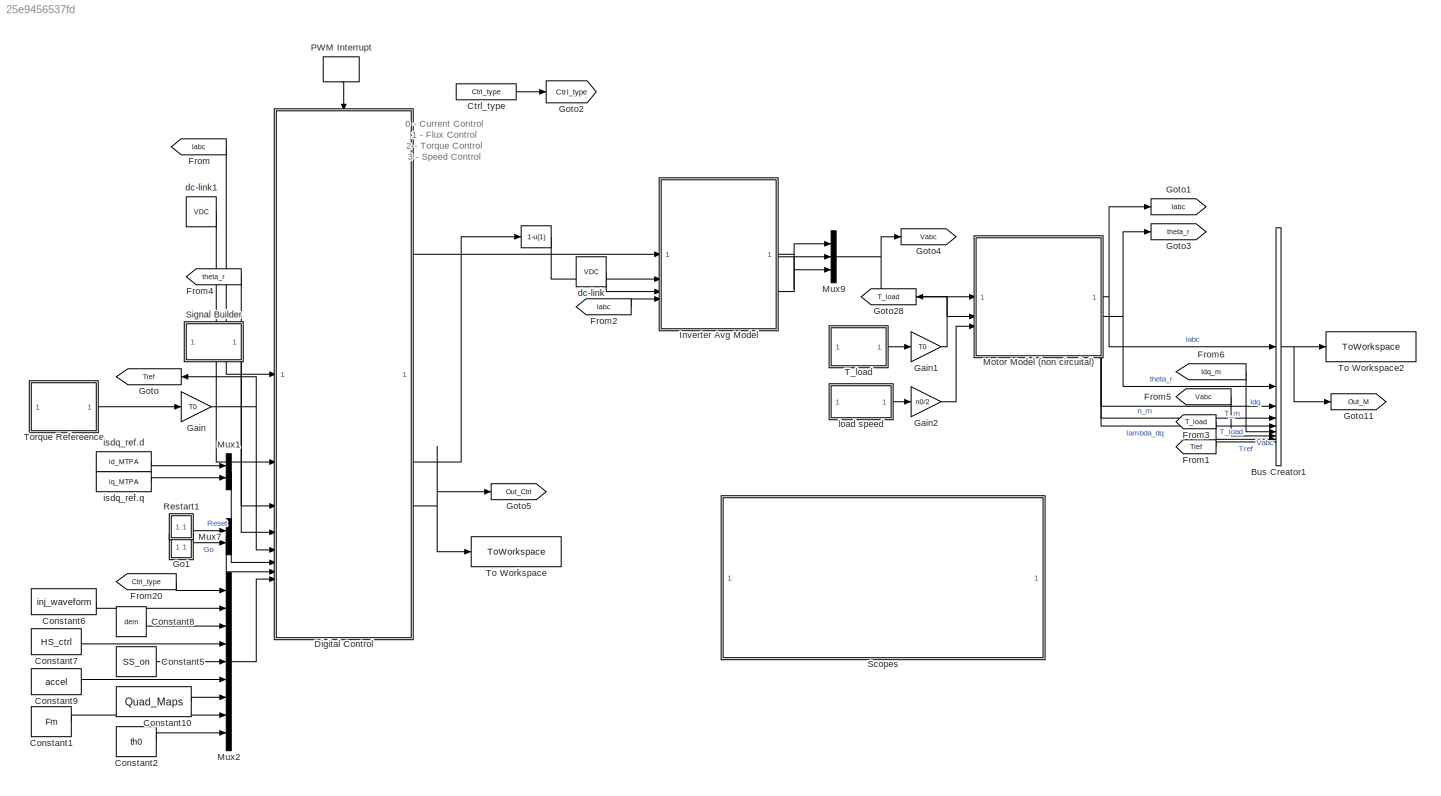
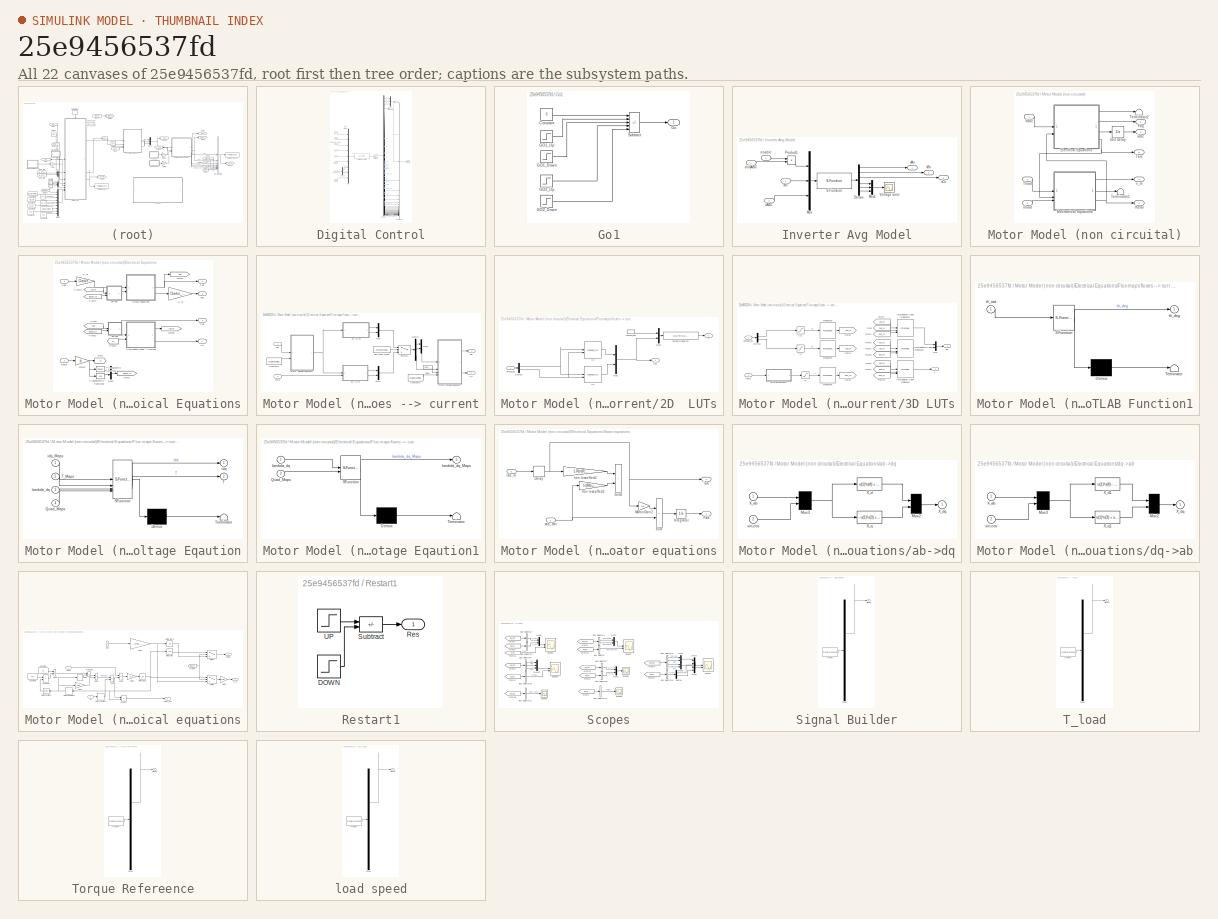
[diagram: thumbnail index - all 22 canvases of the model, root first then tree order]
MODEL slx_25e9456537fd
KIND model
CONFIG AbsTol = 1e-3
CONFIG EnableMultiTasking = on
CONFIG FixedStep = Tstep
CONFIG InitFcn = tic\ninit_sim\nmex Motor_ctrl.c User_functions\Src\*.c\n
CONFIG MaxStep = Tstep
CONFIG MinStep = auto
CONFIG RelTol = 1e-3
CONFIG SampleTimeConstraint = Unconstrained
CONFIG SolverName = ode45
CONFIG StartTime = 0.0
CONFIG StopFcn = elapsed_time=toc
CONFIG StopTime = 1
BLOCK [Fcn]  
  Expr = 1-u(1)
  NameLocation = top
BLOCK [BusCreator] Bus Creator1
  DisplayOption = bar
  InheritFromInputs = on
  Inputs = 9
BLOCK [Constant] Constant1
  Value = Fm
BLOCK [Constant] Constant10
  Value = Quad_Maps
BLOCK [Constant] Constant2
  Value = th0
BLOCK [Constant] Constant5
  Value = SS_on
BLOCK [Constant] Constant6
  Value = inj_waveform
BLOCK [Constant] Constant7
  Value = HS_ctrl
BLOCK [Constant] Constant8
  Value = dem
BLOCK [Constant] Constant9
  Value = accel
BLOCK [Constant] Ctrl_type
  Value = Ctrl_type
BLOCK [SubSystem] Digital Control
  TreatAsAtomicUnit = on
BLOCK [BusCreator] Digital Control/Bus Creator
  DisplayOption = bar
  InheritFromInputs = on
  Inputs = 31
BLOCK [Inport] Digital Control/Commands
  Port = 7
BLOCK [S-Function] Digital Control/Control S-Function
  EnableBusSupport = off
  FunctionName = Motor_ctrl
  SFcnIsStateOwnerBlock = off
  SFunctionDeploymentMode = off
BLOCK [Demux] Digital Control/Demux1
  Outputs = 2
BLOCK [Demux] Digital Control/Demux2
  Outputs = 34
BLOCK [Inport] Digital Control/Inputs
  Port = 8
BLOCK [Mux] Digital Control/Mux
  DisplayOption = bar
  Inputs = 9
BLOCK [Mux] Digital Control/Mux1
  DisplayOption = bar
  Inputs = 3
BLOCK [Outport] Digital Control/Outputs
  Port = 3
BLOCK [Inport] Digital Control/T*
  Port = 5
BLOCK [TriggerPort] Digital Control/Trigger
  VariantControl = (inherit)
BLOCK [UnitDelay] Digital Control/Unit Delay
  HasFrameUpgradeWarning = on
  NameLocation = top
  SampleTime = -1
BLOCK [Outport] Digital Control/duty_abc
BLOCK [Inport] Digital Control/iabcs
BLOCK [Inport] Digital Control/isdq_ref
  Port = 6
BLOCK [Inport] Digital Control/n*
  Port = 4
BLOCK [Outport] Digital Control/pwm_stop
  Port = 2
BLOCK [Inport] Digital Control/theta_mec_meas
  Port = 3
BLOCK [Inport] Digital Control/vdc
  Port = 2
BLOCK [From] From
  GotoTag = Iabc
BLOCK [From] From1
  GotoTag = Tref
BLOCK [From] From2
  GotoTag = Iabc
BLOCK [From] From20
  CloseFcn = tagdialog Close
  GotoTag = Ctrl_type
  TagVisibility = global
BLOCK [From] From3
  GotoTag = T_load
  TagVisibility = global
BLOCK [From] From4
  GotoTag = theta_r
BLOCK [From] From5
  GotoTag = Vabc
BLOCK [From] From6
  GotoTag = Idq_m
  TagVisibility = global
BLOCK [Gain] Gain
  Gain = T0
BLOCK [Gain] Gain1
  Gain = T0
BLOCK [Gain] Gain2
  Gain = n0/2
BLOCK [SubSystem] Go1
BLOCK [Constant] Go1/Constant
  Value = 0
BLOCK [Step] Go1/GO1_Down
  SampleTime = 0
  Time = 0.03+4*Ts
BLOCK [Step] Go1/GO1_Up
  SampleTime = 0
  Time = 0.03
BLOCK [Step] Go1/GO2_Down
  SampleTime = 0
  Time = 0.1+4*Ts
BLOCK [Step] Go1/GO2_Up
  SampleTime = 0
  Time = 0.1
BLOCK [Outport] Go1/Go
BLOCK [Sum] Go1/Subtract
  IconShape = rectangular
  Inputs = ++-+-
BLOCK [Goto] Goto
  GotoTag = Tref
  NameLocation = top
BLOCK [Goto] Goto1
  GotoTag = Iabc
BLOCK [Goto] Goto11
  GotoTag = Out_M
  TagVisibility = global
BLOCK [Goto] Goto2
  GotoTag = Ctrl_type
  TagVisibility = global
BLOCK [Goto] Goto28
  GotoTag = T_load
  NameLocation = top
  TagVisibility = global
BLOCK [Goto] Goto3
  GotoTag = theta_r
BLOCK [Goto] Goto4
  GotoTag = Vabc
BLOCK [Goto] Goto5
  GotoTag = Out_Ctrl
  TagVisibility = global
BLOCK [SubSystem] Inverter Avg Model
BLOCK [Demux] Inverter Avg Model/Demux
  DisplayOption = none
  Outputs = 6
BLOCK [Mux] Inverter Avg Model/Mux
  DisplayOption = bar
  Inputs = 3
BLOCK [Mux] Inverter Avg Model/Mux2
  DisplayOption = bar
  Inputs = 3
BLOCK [Product] Inverter Avg Model/Product1
  RndMeth = Zero
BLOCK [S-Function] Inverter Avg Model/S-Function
  EnableBusSupport = off
  FunctionName = inverter
  Parameters = fsw,dead_time,enable_dt,enable_vdrop, TR_par(1), TR_par(2), TR_par(3), TR_par(4), TR_par(5), D_par(1), D_par(2), D_par(3), D_par(4), D_par(5), TR_mdl, D_mdl
  SFcnIsStateOwnerBlock = off
  SFunctionDeploymentMode = off
BLOCK [Scope] Inverter Avg Model/Voltage Error
  Floating = off
  NumInputPorts = 1
  ScopeSpecificationString = Simulink.scopes.TimeScopeBlockCfg('CurrentConfiguration', extmgr.ConfigurationSet(extmgr.Configuration('Core','General UI',true),extmgr.Configuration('Core','Source UI',true),extmgr.Configuration('Sources','WiredSimulink',true,'DataLoggingVariableName','ScopeData1'),extmgr.Configuration('Visuals','Time Domain',true,'SerializedDisplays',{struct('MinYLimReal','-0.00089','MaxYLimReal','0.00088','YLab...<+1386ch>
BLOCK [Inport] Inverter Avg Model/dutyABC
BLOCK [Inport] Inverter Avg Model/enable
  NameLocation = top
  Port = 2
BLOCK [Inport] Inverter Avg Model/iABC
  Port = 4
BLOCK [Outport] Inverter Avg Model/vAn
  NameLocation = top
  VectorParamsAs1DForOutWhenUnconnected = off
BLOCK [Outport] Inverter Avg Model/vBn
  NameLocation = top
  Port = 2
  VectorParamsAs1DForOutWhenUnconnected = off
BLOCK [Outport] Inverter Avg Model/vCn
  Port = 3
  VectorParamsAs1DForOutWhenUnconnected = off
BLOCK [Inport] Inverter Avg Model/vdc
  Port = 3
BLOCK [SubSystem] Motor Model (non circuital)
BLOCK [SubSystem] Motor Model (non circuital)/Electrical Equations
  NameLocation = top
BLOCK [Gain] Motor Model (non circuital)/Electrical Equations/2-->3
  Gain = Clarke_inv
  Multiplication = Matrix(K*u)
  NameLocation = top
  OutDataTypeStr = Inherit: Same as input
  ParamDataTypeStr = Inherit: Same as input
  SaturateOnIntegerOverflow = on
BLOCK [Gain] Motor Model (non circuital)/Electrical Equations/3-->2
  Gain = Clarke
  Multiplication = Matrix(K*u)
  NameLocation = top
  OutDataTypeStr = Inherit: Same as input
  ParamDataTypeStr = Inherit: Same as input
  SaturateOnIntegerOverflow = on
BLOCK [Outport] Motor Model (non circuital)/Electrical Equations/Fab
BLOCK [Outport] Motor Model (non circuital)/Electrical Equations/Fdq
  Port = 2
BLOCK [SubSystem] Motor Model (non circuital)/Electrical Equations/Flux maps fluxes --> current
BLOCK [SubSystem] Motor Model (non circuital)/Electrical Equations/Flux maps fluxes --> current/2D  LUTs
BLOCK [Demux] Motor Model (non circuital)/Electrical Equations/Flux maps fluxes --> current/2D  LUTs/Demux
  Outputs = 2
BLOCK [Mux] Motor Model (non circuital)/Electrical Equations/Flux maps fluxes --> current/2D  LUTs/Mux1
  DisplayOption = bar
  Inputs = 2
BLOCK [Mux] Motor Model (non circuital)/Electrical Equations/Flux maps fluxes --> current/2D  LUTs/Mux6
  DisplayOption = bar
  Inputs = 2
BLOCK [Outport] Motor Model (non circuital)/Electrical Equations/Flux maps fluxes --> current/2D  LUTs/T
  Port = 2
BLOCK [Fcn] Motor Model (non circuital)/Electrical Equations/Flux maps fluxes --> current/2D  LUTs/Torque Equation
  Expr = (3/2)*p*(u[1]*u[4]-u[2]*u[3])
BLOCK [Lookup_n-D] Motor Model (non circuital)/Electrical Equations/Flux maps fluxes --> current/2D  LUTs/iD
  BreakpointsForDimension1 = Fd(1,:)
  BreakpointsForDimension1FirstPoint = 0
  BreakpointsForDimension1Spacing = 0.17
  BreakpointsForDimension2 = Fq(:,1)
  BreakpointsForDimension2FirstPoint = 0
  BreakpointsForDimension2Spacing = 0.17
  InputPortMap = u0,u1
  InternalRulePriority = Speed
  RndMeth = Simplest
  Table = Id'
BLOCK [Lookup_n-D] Motor Model (non circuital)/Electrical Equations/Flux maps fluxes --> current/2D  LUTs/iQ
  BreakpointsForDimension1 = Fd(1,:)
  BreakpointsForDimension1FirstPoint = 0
  BreakpointsForDimension1Spacing = 0.17
  BreakpointsForDimension2 = Fq(:,1)
  BreakpointsForDimension2FirstPoint = 0
  BreakpointsForDimension2Spacing = 0.17
  InputPortMap = u0,u1
  InternalRulePriority = Speed
  RndMeth = Simplest
  Table = Iq'
BLOCK [Outport] Motor Model (non circuital)/Electrical Equations/Flux maps fluxes --> current/2D  LUTs/idq
BLOCK [Inport] Motor Model (non circuital)/Electrical Equations/Flux maps fluxes --> current/2D  LUTs/lamda_dq
BLOCK [InportShadow] Motor Model (non circuital)/Electrical Equations/Flux maps fluxes --> current/2D  LUTs/lamda_dq1
BLOCK [SubSystem] Motor Model (non circuital)/Electrical Equations/Flux maps fluxes --> current/3D LUTs
BLOCK [Demux] Motor Model (non circuital)/Electrical Equations/Flux maps fluxes --> current/3D LUTs/Demux
  Outputs = 2
BLOCK [From] Motor Model (non circuital)/Electrical Equations/Flux maps fluxes --> current/3D LUTs/From
  GotoTag = bus_d
BLOCK [From] Motor Model (non circuital)/Electrical Equations/Flux maps fluxes --> current/3D LUTs/From1
  GotoTag = bus_d
BLOCK [From] Motor Model (non circuital)/Electrical Equations/Flux maps fluxes --> current/3D LUTs/From10
  GotoTag = bus_th
BLOCK [From] Motor Model (non circuital)/Electrical Equations/Flux maps fluxes --> current/3D LUTs/From2
  GotoTag = bus_d
BLOCK [From] Motor Model (non circuital)/Electrical Equations/Flux maps fluxes --> current/3D LUTs/From4
  GotoTag = bus_q
BLOCK [From] Motor Model (non circuital)/Electrical Equations/Flux maps fluxes --> current/3D LUTs/From5
  GotoTag = bus_q
BLOCK [From] Motor Model (non circuital)/Electrical Equations/Flux maps fluxes --> current/3D LUTs/From6
  GotoTag = bus_q
BLOCK [From] Motor Model (non circuital)/Electrical Equations/Flux maps fluxes --> current/3D LUTs/From8
  GotoTag = bus_th
BLOCK [From] Motor Model (non circuital)/Electrical Equations/Flux maps fluxes --> current/3D LUTs/From9
  GotoTag = bus_th
BLOCK [Goto] Motor Model (non circuital)/Electrical Equations/Flux maps fluxes --> current/3D LUTs/Goto1
  GotoTag = bus_q
BLOCK [Goto] Motor Model (non circuital)/Electrical Equations/Flux maps fluxes --> current/3D LUTs/Goto2
  GotoTag = bus_th
BLOCK [Goto] Motor Model (non circuital)/Electrical Equations/Flux maps fluxes --> current/3D LUTs/Goto5
  GotoTag = bus_d
BLOCK [Interpolation_n-D] Motor Model (non circuital)/Electrical Equations/Flux maps fluxes --> current/3D LUTs/Interpolation Using Prelookup
  InputPortMap = u0,u1,u2
  IntermediateResultsDataTypeStr = Inherit: Inherit via internal rule
  InternalRulePriority = Speed
  LookupTableObject = T_th
  NumberOfTableDimensions = 3
  RequireIndexFractionAsBus = on
  Table = T_dqt
BLOCK [Interpolation_n-D] Motor Model (non circuital)/Electrical Equations/Flux maps fluxes --> current/3D LUTs/Interpolation Using Prelookup1
  InputPortMap = u0,u1,u2
  IntermediateResultsDataTypeStr = Inherit: Inherit via internal rule
  InternalRulePriority = Speed
  NumberOfTableDimensions = 3
  RequireIndexFractionAsBus = on
  Table = Id_dqt
BLOCK [Interpolation_n-D] Motor Model (non circuital)/Electrical Equations/Flux maps fluxes --> current/3D LUTs/Interpolation Using Prelookup2
  InputPortMap = u0,u1,u2
  IntermediateResultsDataTypeStr = Inherit: Inherit via internal rule
  InternalRulePriority = Speed
  NumberOfTableDimensions = 3
  RequireIndexFractionAsBus = on
  Table = Iq_dqt
BLOCK [SubSystem] Motor Model (non circuital)/Electrical Equations/Flux maps fluxes --> current/3D LUTs/MATLAB Function1
  ErrorFcn = Stateflow.Translate.translate
  PermitHierarchicalResolution = ExplicitOnly
  SFBlockType = MATLAB Function
  TreatAsAtomicUnit = on
BLOCK [Demux] Motor Model (non circuital)/Electrical Equations/Flux maps fluxes --> current/3D LUTs/MATLAB Function1/ Demux 
  Outputs = 1
BLOCK [S-Function] Motor Model (non circuital)/Electrical Equations/Flux maps fluxes --> current/3D LUTs/MATLAB Function1/ SFunction 
  EnableBusSupport = off
  FunctionName = sf_sfun
  PortCounts = [1 2]
  SFcnIsStateOwnerBlock = off
  SFunctionDeploymentMode = off
  Tag = Stateflow S-Function 5
BLOCK [Terminator] Motor Model (non circuital)/Electrical Equations/Flux maps fluxes --> current/3D LUTs/MATLAB Function1/ Terminator 
BLOCK [Outport] Motor Model (non circuital)/Electrical Equations/Flux maps fluxes --> current/3D LUTs/MATLAB Function1/th_deg
BLOCK [Inport] Motor Model (non circuital)/Electrical Equations/Flux maps fluxes --> current/3D LUTs/MATLAB Function1/th_rad
BLOCK [Mux] Motor Model (non circuital)/Electrical Equations/Flux maps fluxes --> current/3D LUTs/Mux
  DisplayOption = bar
  Inputs = 2
BLOCK [PreLookup] Motor Model (non circuital)/Electrical Equations/Flux maps fluxes --> current/3D LUTs/Prelookup3
  BreakpointsData = Fd_v
  ExtrapMethod = Linear
  InputPortMap = u0
  OutputSelection = Index and fraction as bus
BLOCK [PreLookup] Motor Model (non circuital)/Electrical Equations/Flux maps fluxes --> current/3D LUTs/Prelookup4
  BreakpointsData = Fq_v
  ExtrapMethod = Linear
  InputPortMap = u0
  OutputSelection = Index and fraction as bus
BLOCK [PreLookup] Motor Model (non circuital)/Electrical Equations/Flux maps fluxes --> current/3D LUTs/Prelookup5
  BreakpointsData = th_v
  ExtrapMethod = Linear
  InputPortMap = u0
  OutputSelection = Index and fraction as bus
BLOCK [Outport] Motor Model (non circuital)/Electrical Equations/Flux maps fluxes --> current/3D LUTs/T
  Port = 2
BLOCK [Saturate] Motor Model (non circuital)/Electrical Equations/Flux maps fluxes --> current/3D LUTs/f_d
  LowerLimit = Fd_min
  UpperLimit = Fd_max
BLOCK [Saturate] Motor Model (non circuital)/Electrical Equations/Flux maps fluxes --> current/3D LUTs/f_q
  LowerLimit = Fq_min
  UpperLimit = Fq_max
BLOCK [Outport] Motor Model (non circuital)/Electrical Equations/Flux maps fluxes --> current/3D LUTs/idq
BLOCK [Inport] Motor Model (non circuital)/Electrical Equations/Flux maps fluxes --> current/3D LUTs/lambda_dq
BLOCK [Saturate] Motor Model (non circuital)/Electrical Equations/Flux maps fluxes --> current/3D LUTs/th
  LowerLimit = th_min
  UpperLimit = th_max
  ZeroCross = off
BLOCK [Inport] Motor Model (non circuital)/Electrical Equations/Flux maps fluxes --> current/3D LUTs/theta
  Port = 2
BLOCK [Constant] Motor Model (non circuital)/Electrical Equations/Flux maps fluxes --> current/Constant1
  Value = Quad_Maps
BLOCK [Constant] Motor Model (non circuital)/Electrical Equations/Flux maps fluxes --> current/Constant2
  Value = Quad_Maps
BLOCK [Demux] Motor Model (non circuital)/Electrical Equations/Flux maps fluxes --> current/Demux
  Outputs = 3
BLOCK [Inport] Motor Model (non circuital)/Electrical Equations/Flux maps fluxes --> current/Fdq
BLOCK [InportShadow] Motor Model (non circuital)/Electrical Equations/Flux maps fluxes --> current/Fdq1
BLOCK [Constant] Motor Model (non circuital)/Electrical Equations/Flux maps fluxes --> current/Flux Maps Model
  Value = FMapsModel
BLOCK [Mux] Motor Model (non circuital)/Electrical Equations/Flux maps fluxes --> current/Mux
  DisplayOption = bar
  Inputs = 2
BLOCK [Mux] Motor Model (non circuital)/Electrical Equations/Flux maps fluxes --> current/Mux1
  DisplayOption = bar
  Inputs = 2
BLOCK [Mux] Motor Model (non circuital)/Electrical Equations/Flux maps fluxes --> current/Mux2
  DisplayOption = bar
  Inputs = 2
BLOCK [SubSystem] Motor Model (non circuital)/Electrical Equations/Flux maps fluxes --> current/Stator Voltage Eqaution
  ErrorFcn = Stateflow.Translate.translate
  PermitHierarchicalResolution = ExplicitOnly
  SFBlockType = MATLAB Function
  TreatAsAtomicUnit = on
BLOCK [Demux] Motor Model (non circuital)/Electrical Equations/Flux maps fluxes --> current/Stator Voltage Eqaution/ Demux 
  Outputs = 1
BLOCK [S-Function] Motor Model (non circuital)/Electrical Equations/Flux maps fluxes --> current/Stator Voltage Eqaution/ SFunction 
  EnableBusSupport = off
  FunctionName = sf_sfun
  PortCounts = [4 3]
  SFcnIsStateOwnerBlock = off
  SFunctionDeploymentMode = off
  Tag = Stateflow S-Function 3
BLOCK [Terminator] Motor Model (non circuital)/Electrical Equations/Flux maps fluxes --> current/Stator Voltage Eqaution/ Terminator 
BLOCK [Inport] Motor Model (non circuital)/Electrical Equations/Flux maps fluxes --> current/Stator Voltage Eqaution/Quad_Maps
  Port = 4
BLOCK [Outport] Motor Model (non circuital)/Electrical Equations/Flux maps fluxes --> current/Stator Voltage Eqaution/T
  Port = 2
BLOCK [Inport] Motor Model (non circuital)/Electrical Equations/Flux maps fluxes --> current/Stator Voltage Eqaution/T_Maps
  Port = 2
BLOCK [Outport] Motor Model (non circuital)/Electrical Equations/Flux maps fluxes --> current/Stator Voltage Eqaution/idq
BLOCK [Inport] Motor Model (non circuital)/Electrical Equations/Flux maps fluxes --> current/Stator Voltage Eqaution/idq_Maps
BLOCK [Inport] Motor Model (non circuital)/Electrical Equations/Flux maps fluxes --> current/Stator Voltage Eqaution/lambda_dq
  Port = 3
BLOCK [SubSystem] Motor Model (non circuital)/Electrical Equations/Flux maps fluxes --> current/Stator Voltage Eqaution1
  ErrorFcn = Stateflow.Translate.translate
  PermitHierarchicalResolution = ExplicitOnly
  SFBlockType = MATLAB Function
  TreatAsAtomicUnit = on
BLOCK [Demux] Motor Model (non circuital)/Electrical Equations/Flux maps fluxes --> current/Stator Voltage Eqaution1/ Demux 
  Outputs = 1
BLOCK [S-Function] Motor Model (non circuital)/Electrical Equations/Flux maps fluxes --> current/Stator Voltage Eqaution1/ SFunction 
  EnableBusSupport = off
  FunctionName = sf_sfun
  PortCounts = [2 2]
  SFcnIsStateOwnerBlock = off
  SFunctionDeploymentMode = off
  Tag = Stateflow S-Function 4
BLOCK [Terminator] Motor Model (non circuital)/Electrical Equations/Flux maps fluxes --> current/Stator Voltage Eqaution1/ Terminator 
BLOCK [Inport] Motor Model (non circuital)/Electrical Equations/Flux maps fluxes --> current/Stator Voltage Eqaution1/Quad_Maps
  Port = 2
BLOCK [Inport] Motor Model (non circuital)/Electrical Equations/Flux maps fluxes --> current/Stator Voltage Eqaution1/lambda_dq
BLOCK [Outport] Motor Model (non circuital)/Electrical Equations/Flux maps fluxes --> current/Stator Voltage Eqaution1/lambda_dq_Maps
BLOCK [Switch] Motor Model (non circuital)/Electrical Equations/Flux maps fluxes --> current/Switch1
  Criteria = u2 > Threshold
  InputSameDT = off
  SaturateOnIntegerOverflow = off
BLOCK [Outport] Motor Model (non circuital)/Electrical Equations/Flux maps fluxes --> current/T_e
  InitialOutput = 0
  Port = 2
BLOCK [Outport] Motor Model (non circuital)/Electrical Equations/Flux maps fluxes --> current/idq
  InitialOutput = 0
BLOCK [Inport] Motor Model (non circuital)/Electrical Equations/Flux maps fluxes --> current/theta
  Port = 2
BLOCK [From] Motor Model (non circuital)/Electrical Equations/From
  GotoTag = Fab
BLOCK [From] Motor Model (non circuital)/Electrical Equations/From1
  GotoTag = th
BLOCK [From] Motor Model (non circuital)/Electrical Equations/From2
  GotoTag = SinCos_th
BLOCK [From] Motor Model (non circuital)/Electrical Equations/From3
  GotoTag = SinCos_th
BLOCK [From] Motor Model (non circuital)/Electrical Equations/From4
  GotoTag = Idq_m
  TagVisibility = global
BLOCK [Gain] Motor Model (non circuital)/Electrical Equations/Gain2
  Gain = p
  OutDataTypeStr = Inherit: Same as input
  ParamDataTypeStr = Inherit: Same as input
  SaturateOnIntegerOverflow = on
BLOCK [Goto] Motor Model (non circuital)/Electrical Equations/Goto
  GotoTag = th
BLOCK [Goto] Motor Model (non circuital)/Electrical Equations/Goto1
  GotoTag = SinCos_th
BLOCK [Goto] Motor Model (non circuital)/Electrical Equations/Goto2
  GotoTag = Fab
BLOCK [Goto] Motor Model (non circuital)/Electrical Equations/Goto3
  GotoTag = Idq_m
  TagVisibility = global
BLOCK [Mux] Motor Model (non circuital)/Electrical Equations/Mux2
  DisplayOption = bar
  Inputs = 2
  NameLocation = top
BLOCK [SubSystem] Motor Model (non circuital)/Electrical Equations/Stator equations
BLOCK [Delay] Motor Model (non circuital)/Electrical Equations/Stator equations/Delay
  DelayLength = 1
  InputPortMap = u0
BLOCK [Outport] Motor Model (non circuital)/Electrical Equations/Stator equations/Fab
  VectorParamsAs1DForOutWhenUnconnected = off
BLOCK [Integrator] Motor Model (non circuital)/Electrical Equations/Stator equations/Integrator
  InitialCondition = [F0_alpha,F0_beta]
BLOCK [Gain] Motor Model (non circuital)/Electrical Equations/Stator equations/Iron loss effect1
  Gain = 1-Rs/(Rs+Rfe)
  NameLocation = top
  OutDataTypeStr = Inherit: Same as input
  ParamDataTypeStr = Inherit: Same as input
  SaturateOnIntegerOverflow = on
BLOCK [Gain] Motor Model (non circuital)/Electrical Equations/Stator equations/Iron loss effect2
  Gain = 1/(Rfe+Rs)
  NameLocation = top
  OutDataTypeStr = Inherit: Same as input
  ParamDataTypeStr = Inherit: Same as input
  SaturateOnIntegerOverflow = on
BLOCK [Gain] Motor Model (non circuital)/Electrical Equations/Stator equations/Matrix Gain2
  Gain = Rs
  OutDataTypeStr = Inherit: Same as input
  ParamDataTypeStr = Inherit: Same as input
  SaturateOnIntegerOverflow = on
BLOCK [Sum] Motor Model (non circuital)/Electrical Equations/Stator equations/Sum
  IconShape = rectangular
  Inputs = -+
  OutDataTypeStr = Inherit: Same as first input
  SaturateOnIntegerOverflow = on
BLOCK [Sum] Motor Model (non circuital)/Electrical Equations/Stator equations/Sum2
  IconShape = rectangular
  OutDataTypeStr = Inherit: Same as first input
  SaturateOnIntegerOverflow = on
BLOCK [Outport] Motor Model (non circuital)/Electrical Equations/Stator equations/iab
  Port = 2
  VectorParamsAs1DForOutWhenUnconnected = off
BLOCK [Inport] Motor Model (non circuital)/Electrical Equations/Stator equations/iab_m
  Port = 2
BLOCK [Inport] Motor Model (non circuital)/Electrical Equations/Stator equations/vab_mot
BLOCK [Outport] Motor Model (non circuital)/Electrical Equations/Te
  Port = 4
BLOCK [Trigonometry] Motor Model (non circuital)/Electrical Equations/Trigonometric Function2
BLOCK [Trigonometry] Motor Model (non circuital)/Electrical Equations/Trigonometric Function3
  NameLocation = top
  Operator = cos
BLOCK [Inport] Motor Model (non circuital)/Electrical Equations/Vabc
BLOCK [SubSystem] Motor Model (non circuital)/Electrical Equations/ab->dq
  NameLocation = top
BLOCK [Mux] Motor Model (non circuital)/Electrical Equations/ab->dq/Mux2
  Inputs = 2
BLOCK [Mux] Motor Model (non circuital)/Electrical Equations/ab->dq/Mux3
  Inputs = 2
BLOCK [Inport] Motor Model (non circuital)/Electrical Equations/ab->dq/X_ab
BLOCK [Fcn] Motor Model (non circuital)/Electrical Equations/ab->dq/X_d
  Expr = u(1)*u(4) + u(2)*u(3)
BLOCK [Outport] Motor Model (non circuital)/Electrical Equations/ab->dq/X_dq
  InitialOutput = 0
BLOCK [Fcn] Motor Model (non circuital)/Electrical Equations/ab->dq/X_q
  Expr = - u(1)*u(3) + u(2)*u(4)
BLOCK [Inport] Motor Model (non circuital)/Electrical Equations/ab->dq/sin,cos
  Port = 2
BLOCK [SubSystem] Motor Model (non circuital)/Electrical Equations/dq->ab
  NameLocation = top
BLOCK [Mux] Motor Model (non circuital)/Electrical Equations/dq->ab/Mux2
  Inputs = 2
BLOCK [Mux] Motor Model (non circuital)/Electrical Equations/dq->ab/Mux3
  Inputs = 2
BLOCK [Inport] Motor Model (non circuital)/Electrical Equations/dq->ab/X_ab
BLOCK [Fcn] Motor Model (non circuital)/Electrical Equations/dq->ab/X_d1
  Expr = u(1)*u(4) - u(2)*u(3)
BLOCK [Outport] Motor Model (non circuital)/Electrical Equations/dq->ab/X_dq
  InitialOutput = 0
BLOCK [Fcn] Motor Model (non circuital)/Electrical Equations/dq->ab/X_q1
  Expr = u(1)*u(3) + u(2)*u(4)
BLOCK [Inport] Motor Model (non circuital)/Electrical Equations/dq->ab/sin,cos
  Port = 2
BLOCK [Outport] Motor Model (non circuital)/Electrical Equations/iabc
  Port = 3
BLOCK [Inport] Motor Model (non circuital)/Electrical Equations/thetar
  Port = 2
BLOCK [Outport] Motor Model (non circuital)/Fdq
  Port = 5
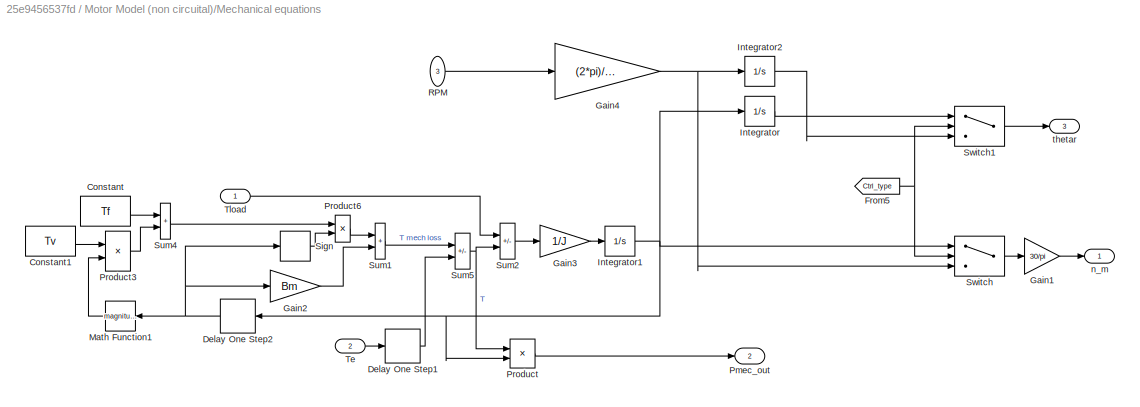
BLOCK [SubSystem] Motor Model (non circuital)/Mechanical equations
  NameLocation = top
BLOCK [Constant] Motor Model (non circuital)/Mechanical equations/Constant
  Value = Tf
BLOCK [Constant] Motor Model (non circuital)/Mechanical equations/Constant1
  Value = Tv
BLOCK [Delay] Motor Model (non circuital)/Mechanical equations/Delay One Step1
  DelayLength = 1
  InputPortMap = u0
BLOCK [Delay] Motor Model (non circuital)/Mechanical equations/Delay One Step2
  DelayLength = 1
  InputPortMap = u0
BLOCK [From] Motor Model (non circuital)/Mechanical equations/From5
  GotoTag = Ctrl_type
  TagVisibility = global
BLOCK [Gain] Motor Model (non circuital)/Mechanical equations/Gain1
  Gain = 30/pi
BLOCK [Gain] Motor Model (non circuital)/Mechanical equations/Gain2
  Gain = Bm
  OutDataTypeStr = Inherit: Same as input
  ParamDataTypeStr = Inherit: Same as input
  SaturateOnIntegerOverflow = on
BLOCK [Gain] Motor Model (non circuital)/Mechanical equations/Gain3
  Gain = 1/J
  OutDataTypeStr = Inherit: Same as input
  ParamDataTypeStr = Inherit: Same as input
  SaturateOnIntegerOverflow = on
BLOCK [Gain] Motor Model (non circuital)/Mechanical equations/Gain4
  Gain = (2*pi)/60
BLOCK [Integrator] Motor Model (non circuital)/Mechanical equations/Integrator
  InitialCondition = th0
  WrapState = on
  WrappedStateLowerValue = 0
  WrappedStateUpperValue = 2*pi
BLOCK [Integrator] Motor Model (non circuital)/Mechanical equations/Integrator1
BLOCK [Integrator] Motor Model (non circuital)/Mechanical equations/Integrator2
  InitialCondition = th0
  WrapState = on
  WrappedStateLowerValue = 0
  WrappedStateUpperValue = 2*pi
BLOCK [Math] Motor Model (non circuital)/Mechanical equations/Math Function1
  Operator = magnitude^2
  SignedPower = on
BLOCK [Outport] Motor Model (non circuital)/Mechanical equations/Pmec_out
  Port = 2
  VectorParamsAs1DForOutWhenUnconnected = off
BLOCK [Product] Motor Model (non circuital)/Mechanical equations/Product
  OutDataTypeStr = Inherit: Same as first input
  SaturateOnIntegerOverflow = on
BLOCK [Product] Motor Model (non circuital)/Mechanical equations/Product3
  OutDataTypeStr = Inherit: Same as first input
  SaturateOnIntegerOverflow = on
BLOCK [Product] Motor Model (non circuital)/Mechanical equations/Product6
  OutDataTypeStr = Inherit: Same as first input
  SaturateOnIntegerOverflow = on
BLOCK [Inport] Motor Model (non circuital)/Mechanical equations/RPM
  Port = 3
BLOCK [Signum] Motor Model (non circuital)/Mechanical equations/Sign
  ZeroCross = off
BLOCK [Sum] Motor Model (non circuital)/Mechanical equations/Sum1
  IconShape = rectangular
  OutDataTypeStr = Inherit: Same as first input
  SaturateOnIntegerOverflow = on
BLOCK [Sum] Motor Model (non circuital)/Mechanical equations/Sum2
  IconShape = rectangular
  Inputs = -+
  OutDataTypeStr = Inherit: Same as first input
  SaturateOnIntegerOverflow = on
BLOCK [Sum] Motor Model (non circuital)/Mechanical equations/Sum4
  IconShape = rectangular
  OutDataTypeStr = Inherit: Same as first input
  SaturateOnIntegerOverflow = on
BLOCK [Sum] Motor Model (non circuital)/Mechanical equations/Sum5
  IconShape = rectangular
  Inputs = -+
  OutDataTypeStr = Inherit: Same as first input
  SaturateOnIntegerOverflow = on
BLOCK [Switch] Motor Model (non circuital)/Mechanical equations/Switch
  Criteria = u2 > Threshold
  InputSameDT = off
  SaturateOnIntegerOverflow = off
  Threshold = 2.5
BLOCK [Switch] Motor Model (non circuital)/Mechanical equations/Switch1
  Criteria = u2 > Threshold
  InputSameDT = off
  SaturateOnIntegerOverflow = off
  Threshold = 2.5
BLOCK [Inport] Motor Model (non circuital)/Mechanical equations/Te
  Port = 2
BLOCK [Inport] Motor Model (non circuital)/Mechanical equations/Tload
  NameLocation = top
BLOCK [Outport] Motor Model (non circuital)/Mechanical equations/n_m
BLOCK [Outport] Motor Model (non circuital)/Mechanical equations/thetar
  Port = 3
BLOCK [Outport] Motor Model (non circuital)/Tem
  Port = 3
BLOCK [Terminator] Motor Model (non circuital)/Terminator1
BLOCK [Terminator] Motor Model (non circuital)/Terminator2
BLOCK [Inport] Motor Model (non circuital)/Tload
  Port = 2
BLOCK [UnitDelay] Motor Model (non circuital)/Unit Delay
  HasFrameUpgradeWarning = on
  NameLocation = top
  SampleTime = -1
BLOCK [Inport] Motor Model (non circuital)/Vabc
BLOCK [Outport] Motor Model (non circuital)/iabc
BLOCK [Outport] Motor Model (non circuital)/n_m
  Port = 4
BLOCK [Inport] Motor Model (non circuital)/nload
  Port = 3
BLOCK [Outport] Motor Model (non circuital)/thetar
  Port = 2
BLOCK [Mux] Mux1
  DisplayOption = bar
  Inputs = 2
BLOCK [Mux] Mux2
  DisplayOption = bar
  Inputs = 9
BLOCK [Mux] Mux7
  DisplayOption = bar
  Inputs = 2
BLOCK [Mux] Mux9
  DisplayOption = bar
  Inputs = 3
BLOCK [DiscretePulseGenerator] PWM Interrupt
  NameLocation = left
  Period = Ts
  PulseType = Time based
  PulseWidth = 50
BLOCK [SubSystem] Restart1
BLOCK [Step] Restart1/DOWN 
  SampleTime = 0
  Time = 10e-3+4*Ts
BLOCK [Outport] Restart1/Res
BLOCK [Sum] Restart1/Subtract
  IconShape = rectangular
  Inputs = +-
BLOCK [Step] Restart1/UP 
  SampleTime = 0
  Time = 10e-3
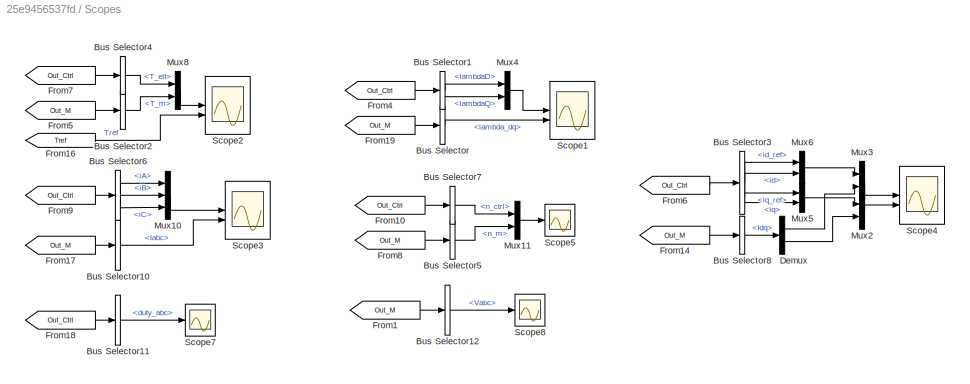
BLOCK [SubSystem] Scopes
BLOCK [BusSelector] Scopes/Bus Selector
  OutputSignals = lambda_dq
BLOCK [BusSelector] Scopes/Bus Selector1
  OutputSignals = lambdaD,lambdaQ
BLOCK [BusSelector] Scopes/Bus Selector10
  OutputSignals = Iabc
BLOCK [BusSelector] Scopes/Bus Selector11
  OutputSignals = duty_abc
BLOCK [BusSelector] Scopes/Bus Selector12
  Commented = on
  OutputSignals = Vabc
BLOCK [BusSelector] Scopes/Bus Selector2
  OutputSignals = T_m
BLOCK [BusSelector] Scopes/Bus Selector3
  OutputSignals = id_ref,id,iq_ref,iq
BLOCK [BusSelector] Scopes/Bus Selector4
  OutputSignals = T_elt
BLOCK [BusSelector] Scopes/Bus Selector5
  OutputSignals = n_m
BLOCK [BusSelector] Scopes/Bus Selector6
  OutputSignals = iA,iB,iC
BLOCK [BusSelector] Scopes/Bus Selector7
  OutputSignals = n_ctrl
BLOCK [BusSelector] Scopes/Bus Selector8
  OutputSignals = Idq
BLOCK [Demux] Scopes/Demux
  Outputs = 2
BLOCK [From] Scopes/From1
  CloseFcn = tagdialog Close
  Commented = on
  GotoTag = Out_M
  TagVisibility = global
BLOCK [From] Scopes/From10
  CloseFcn = tagdialog Close
  GotoTag = Out_Ctrl
  TagVisibility = global
BLOCK [From] Scopes/From14
  CloseFcn = tagdialog Close
  GotoTag = Out_M
  TagVisibility = global
BLOCK [From] Scopes/From16
  GotoTag = Tref
BLOCK [From] Scopes/From17
  CloseFcn = tagdialog Close
  GotoTag = Out_M
  TagVisibility = global
BLOCK [From] Scopes/From18
  CloseFcn = tagdialog Close
  GotoTag = Out_Ctrl
  TagVisibility = global
BLOCK [From] Scopes/From19
  CloseFcn = tagdialog Close
  GotoTag = Out_M
  TagVisibility = global
BLOCK [From] Scopes/From4
  CloseFcn = tagdialog Close
  GotoTag = Out_Ctrl
  TagVisibility = global
BLOCK [From] Scopes/From5
  CloseFcn = tagdialog Close
  GotoTag = Out_M
  TagVisibility = global
BLOCK [From] Scopes/From6
  CloseFcn = tagdialog Close
  GotoTag = Out_Ctrl
  TagVisibility = global
BLOCK [From] Scopes/From7
  CloseFcn = tagdialog Close
  GotoTag = Out_Ctrl
  TagVisibility = global
BLOCK [From] Scopes/From8
  CloseFcn = tagdialog Close
  GotoTag = Out_M
  TagVisibility = global
BLOCK [From] Scopes/From9
  CloseFcn = tagdialog Close
  GotoTag = Out_Ctrl
  TagVisibility = global
BLOCK [Mux] Scopes/Mux10
  DisplayOption = bar
  Inputs = 3
BLOCK [Mux] Scopes/Mux11
  DisplayOption = bar
  Inputs = 2
BLOCK [Mux] Scopes/Mux2
  DisplayOption = bar
  Inputs = 2
BLOCK [Mux] Scopes/Mux3
  DisplayOption = bar
  Inputs = 2
BLOCK [Mux] Scopes/Mux4
  DisplayOption = bar
  Inputs = 2
BLOCK [Mux] Scopes/Mux5
  DisplayOption = bar
  Inputs = 2
BLOCK [Mux] Scopes/Mux6
  DisplayOption = bar
  Inputs = 2
BLOCK [Mux] Scopes/Mux8
  DisplayOption = bar
  Inputs = 2
BLOCK [Scope] Scopes/Scope1
  Floating = off
  NumInputPorts = 2
  ScopeSpecificationString = Simulink.scopes.TimeScopeBlockCfg('CurrentConfiguration', extmgr.ConfigurationSet(extmgr.Configuration('Core','General UI',true),extmgr.Configuration('Core','Source UI',true),extmgr.Configuration('Sources','WiredSimulink',true,'DataLoggingVariableName','ScopeData4'),extmgr.Configuration('Visuals','Time Domain',true,'SerializedDisplays',{struct('MinYLimReal','-0.1992','MaxYLimReal','0.40298','YLabe...<+1597ch>
BLOCK [Scope] Scopes/Scope2
  Floating = off
  NumInputPorts = 2
  ScopeSpecificationString = Simulink.scopes.TimeScopeBlockCfg('CurrentConfiguration', extmgr.ConfigurationSet(extmgr.Configuration('Core','General UI',true),extmgr.Configuration('Core','Source UI',true),extmgr.Configuration('Sources','WiredSimulink',true,'DataLoggingVariableName','ScopeData2'),extmgr.Configuration('Visuals','Time Domain',true,'SerializedDisplays',{struct('MinYLimReal','-633.93441','MaxYLimReal','687.21054','...<+1564ch>
BLOCK [Scope] Scopes/Scope3
  Floating = off
  NumInputPorts = 2
  ScopeSpecificationString = Simulink.scopes.TimeScopeBlockCfg('CurrentConfiguration', extmgr.ConfigurationSet(extmgr.Configuration('Core','General UI',true),extmgr.Configuration('Core','Source UI',true),extmgr.Configuration('Sources','WiredSimulink',true,'DataLoggingVariableName','ScopeData3'),extmgr.Configuration('Visuals','Time Domain',true,'SerializedDisplays',{struct('MinYLimReal','-1836.00632','MaxYLimReal','2198.99756'...<+1647ch>
BLOCK [Scope] Scopes/Scope4
  Floating = off
  NumInputPorts = 2
  ScopeSpecificationString = Simulink.scopes.TimeScopeBlockCfg('CurrentConfiguration', extmgr.ConfigurationSet(extmgr.Configuration('Core','General UI',true),extmgr.Configuration('Core','Source UI',true),extmgr.Configuration('Sources','WiredSimulink',true,'DataLoggingVariableName','ScopeData1'),extmgr.Configuration('Visuals','Time Domain',true,'SerializedDisplays',{struct('MinYLimReal','-1641.43099','MaxYLimReal','447.81957',...<+2105ch>
BLOCK [Scope] Scopes/Scope5
  Floating = off
  NumInputPorts = 1
  ScopeSpecificationString = Simulink.scopes.TimeScopeBlockCfg('CurrentConfiguration', extmgr.ConfigurationSet(extmgr.Configuration('Core','General UI',true),extmgr.Configuration('Core','Source UI',true),extmgr.Configuration('Sources','WiredSimulink',true,'DataLoggingVariableName','ScopeData3'),extmgr.Configuration('Visuals','Time Domain',true,'SerializedDisplays',{struct('MinYLimReal','-500.00000','MaxYLimReal','4500.00000',...<+1473ch>
BLOCK [Scope] Scopes/Scope7
  Floating = off
  NumInputPorts = 1
  ScopeSpecificationString = Simulink.scopes.TimeScopeBlockCfg('CurrentConfiguration', extmgr.ConfigurationSet(extmgr.Configuration('Core','General UI',true),extmgr.Configuration('Core','Source UI',true),extmgr.Configuration('Sources','WiredSimulink',true,'DataLoggingVariableName','ScopeData5'),extmgr.Configuration('Visuals','Time Domain',true,'SerializedDisplays',{struct('MinYLimReal','-0.12375','MaxYLimReal','1.11375','YLab...<+1472ch>
BLOCK [Scope] Scopes/Scope8
  Commented = on
  Floating = off
  NumInputPorts = 1
  ScopeSpecificationString = Simulink.scopes.TimeScopeBlockCfg('CurrentConfiguration', extmgr.ConfigurationSet(extmgr.Configuration('Core','General UI',true),extmgr.Configuration('Core','Source UI',true),extmgr.Configuration('Sources','WiredSimulink',true,'DataLoggingVariableName','ScopeData6'),extmgr.Configuration('Visuals','Time Domain',true,'SerializedDisplays',{struct('MinYLimReal','-258.66664','MaxYLimReal','258.66665','...<+1569ch>
BLOCK [SubSystem] Signal Builder
  ClipboardFcn = sigbuilder_block('clipboard');
  CloseFcn = sigbuilder_block('close');
  ContinueFcn = sigbuilder_block('continue');
  CopyFcn = sigbuilder_block('copy');
  DeleteFcn = sigbuilder_block('delete');
  LoadFcn = sigbuilder_block('load');
  MaskHideContents = on
  ModelCloseFcn = sigbuilder_block('modelClose');
  NameChangeFcn = sigbuilder_block('namechange');
  OpenFcn = sigbuilder_block('open',[312 77.4 550.2 399.6 ]);
  PauseFcn = sigbuilder_block('pause');
  PreSaveFcn = sigbuilder_block('preSave');
  StartFcn = sigbuilder_block('start');
  StopFcn = sigbuilder_block('stop');
  Tag = STV Subsys
BLOCK [Demux] Signal Builder/Demux
  DisplayOption = none
  Outputs = 1
  Tag = STV Demux
BLOCK [FromWorkspace] Signal Builder/FromWs
  Tag = STV FromWs
  VariableName = tuvar
BLOCK [Outport] Signal Builder/Signal 1
  Tag = STV Outport
BLOCK [SubSystem] T_load
  ClipboardFcn = sigbuilder_block('clipboard');
  CloseFcn = sigbuilder_block('close');
  ContinueFcn = sigbuilder_block('continue');
  CopyFcn = sigbuilder_block('copy');
  DeleteFcn = sigbuilder_block('delete');
  LoadFcn = sigbuilder_block('load');
  MaskHideContents = on
  ModelCloseFcn = sigbuilder_block('modelClose');
  NameChangeFcn = sigbuilder_block('namechange');
  OpenFcn = sigbuilder_block('open',[537 153.6 550.2 360.6 ]);
  PauseFcn = sigbuilder_block('pause');
  PreSaveFcn = sigbuilder_block('preSave');
  StartFcn = sigbuilder_block('start');
  StopFcn = sigbuilder_block('stop');
  Tag = STV Subsys
BLOCK [Demux] T_load/Demux
  DisplayOption = none
  Outputs = 1
  Tag = STV Demux
BLOCK [FromWorkspace] T_load/FromWs
  Tag = STV FromWs
  VariableName = tuvar
BLOCK [Outport] T_load/Signal 1
  Tag = STV Outport
BLOCK [ToWorkspace] To Workspace
  FixptAsFi = on
  MaxDataPoints = inf
  SampleTime = -1
  SaveFormat = Timeseries
  VariableName = Outputs
BLOCK [ToWorkspace] To Workspace2
  FixptAsFi = on
  MaxDataPoints = inf
  SampleTime = -1
  SaveFormat = Timeseries
  VariableName = Out_M
BLOCK [SubSystem] Torque Refereence
  ClipboardFcn = sigbuilder_block('clipboard');
  CloseFcn = sigbuilder_block('close');
  ContinueFcn = sigbuilder_block('continue');
  CopyFcn = sigbuilder_block('copy');
  DeleteFcn = sigbuilder_block('delete');
  LoadFcn = sigbuilder_block('load');
  MaskHideContents = on
  ModelCloseFcn = sigbuilder_block('modelClose');
  NameChangeFcn = sigbuilder_block('namechange');
  NameLocation = top
  OpenFcn = sigbuilder_block('open',[596.4 129.6 550.2 321.6 ]);
  PauseFcn = sigbuilder_block('pause');
  PreSaveFcn = sigbuilder_block('preSave');
  StartFcn = sigbuilder_block('start');
  StopFcn = sigbuilder_block('stop');
  Tag = STV Subsys
BLOCK [Demux] Torque Refereence/Demux
  DisplayOption = none
  Outputs = 1
  Tag = STV Demux
BLOCK [FromWorkspace] Torque Refereence/FromWs
  Tag = STV FromWs
  VariableName = tuvar
BLOCK [Outport] Torque Refereence/Signal 1
  Tag = STV Outport
BLOCK [Constant] dc-link
  Value = VDC
BLOCK [Constant] dc-link1
  Value = VDC
BLOCK [Constant] isdq_ref.d
  NameLocation = top
  Value = id_MTPA
BLOCK [Constant] isdq_ref.q
  Value = iq_MTPA
BLOCK [SubSystem] load speed
  ClipboardFcn = sigbuilder_block('clipboard');
  CloseFcn = sigbuilder_block('close');
  ContinueFcn = sigbuilder_block('continue');
  CopyFcn = sigbuilder_block('copy');
  DeleteFcn = sigbuilder_block('delete');
  LoadFcn = sigbuilder_block('load');
  MaskHideContents = on
  ModelCloseFcn = sigbuilder_block('modelClose');
  NameChangeFcn = sigbuilder_block('namechange');
  OpenFcn = sigbuilder_block('open',[236.4 192 550.2 354.6 ]);
  PauseFcn = sigbuilder_block('pause');
  PreSaveFcn = sigbuilder_block('preSave');
  StartFcn = sigbuilder_block('start');
  StopFcn = sigbuilder_block('stop');
  Tag = STV Subsys
BLOCK [Demux] load speed/Demux
  DisplayOption = none
  Outputs = 1
  Tag = STV Demux
BLOCK [FromWorkspace] load speed/FromWs
  Tag = STV FromWs
  VariableName = tuvar
BLOCK [Outport] load speed/Signal 1
  Tag = STV Outport
ANNOTATION (root): 0 - Current Control 1 - Flux Control 2 - Torque Control 3 - Speed Control
LINE  :1 -> Inverter Avg Model:2
NET Bus Creator1:1 -> Goto11:1, To Workspace2:1
LINE Constant10:1 -> Mux2:7
LINE Constant1:1 -> Mux2:8
LINE Constant2:1 -> Mux2:9
LINE Constant5:1 -> Mux2:5
LINE Constant6:1 -> Mux2:2
LINE Constant7:1 -> Mux2:4
LINE Constant8:1 -> Mux2:3
LINE Constant9:1 -> Mux2:6
LINE Ctrl_type:1 -> Goto2:1
LINE Digital Control/Bus Creator:1 -> Digital Control/Outputs:1
LINE Digital Control/Commands:1 -> Digital Control/Demux1:1
LINE Digital Control/Control S-Function:1 -> Digital Control/Unit Delay:1
LINE Digital Control/Demux1:1 -> Digital Control/Mux:7
LINE Digital Control/Demux1:2 -> Digital Control/Mux:8
LINE Digital Control/Demux2:1 -> Digital Control/Mux1:1
LINE Digital Control/Demux2:10 -> Digital Control/Bus Creator:7
LINE Digital Control/Demux2:11 -> Digital Control/Bus Creator:8
LINE Digital Control/Demux2:12 -> Digital Control/Bus Creator:9
LINE Digital Control/Demux2:13 -> Digital Control/Bus Creator:10
LINE Digital Control/Demux2:14 -> Digital Control/Bus Creator:11
LINE Digital Control/Demux2:15 -> Digital Control/Bus Creator:12
LINE Digital Control/Demux2:16 -> Digital Control/Bus Creator:13
LINE Digital Control/Demux2:17 -> Digital Control/Bus Creator:14
LINE Digital Control/Demux2:18 -> Digital Control/Bus Creator:15
LINE Digital Control/Demux2:19 -> Digital Control/Bus Creator:16
LINE Digital Control/Demux2:2 -> Digital Control/Mux1:2
LINE Digital Control/Demux2:20 -> Digital Control/Bus Creator:17
LINE Digital Control/Demux2:21 -> Digital Control/Bus Creator:18
LINE Digital Control/Demux2:22 -> Digital Control/Bus Creator:19
LINE Digital Control/Demux2:23 -> Digital Control/Bus Creator:20
LINE Digital Control/Demux2:24 -> Digital Control/Bus Creator:21
LINE Digital Control/Demux2:25 -> Digital Control/Bus Creator:22
LINE Digital Control/Demux2:26 -> Digital Control/Bus Creator:23
LINE Digital Control/Demux2:27 -> Digital Control/Bus Creator:24
LINE Digital Control/Demux2:28 -> Digital Control/Bus Creator:25
LINE Digital Control/Demux2:29 -> Digital Control/Bus Creator:26
LINE Digital Control/Demux2:3 -> Digital Control/Mux1:3
LINE Digital Control/Demux2:30 -> Digital Control/Bus Creator:27
LINE Digital Control/Demux2:31 -> Digital Control/Bus Creator:28
LINE Digital Control/Demux2:32 -> Digital Control/Bus Creator:29
LINE Digital Control/Demux2:33 -> Digital Control/Bus Creator:30
LINE Digital Control/Demux2:34 -> Digital Control/Bus Creator:31
LINE Digital Control/Demux2:4 -> Digital Control/pwm_stop:1
LINE Digital Control/Demux2:5 -> Digital Control/Bus Creator:2
LINE Digital Control/Demux2:6 -> Digital Control/Bus Creator:3
LINE Digital Control/Demux2:7 -> Digital Control/Bus Creator:4
LINE Digital Control/Demux2:8 -> Digital Control/Bus Creator:5
LINE Digital Control/Demux2:9 -> Digital Control/Bus Creator:6
LINE Digital Control/Inputs:1 -> Digital Control/Mux:9
NET Digital Control/Mux1:1 -> Digital Control/Bus Creator:1, Digital Control/duty_abc:1
LINE Digital Control/Mux:1 -> Digital Control/Control S-Function:1
LINE Digital Control/T*:1 -> Digital Control/Mux:5
LINE Digital Control/Unit Delay:1 -> Digital Control/Demux2:1
LINE Digital Control/iabcs:1 -> Digital Control/Mux:1
LINE Digital Control/isdq_ref:1 -> Digital Control/Mux:6
LINE Digital Control/n*:1 -> Digital Control/Mux:4
LINE Digital Control/theta_mec_meas:1 -> Digital Control/Mux:3
LINE Digital Control/vdc:1 -> Digital Control/Mux:2
LINE Digital Control:1 -> Inverter Avg Model:1
LINE Digital Control:2 ->  :1
NET Digital Control:3 -> Goto5:1, To Workspace:1
LINE From1:1 -> Bus Creator1:9
LINE From20:1 -> Mux2:1
LINE From2:1 -> Inverter Avg Model:4
LINE From3:1 -> Bus Creator1:8
LINE From4:1 -> Digital Control:3
LINE From5:1 -> Bus Creator1:7
LINE From6:1 -> Bus Creator1:6
LINE From:1 -> Digital Control:1
NET Gain1:1 -> Goto28:1, Motor Model (non circuital):2
LINE Gain2:1 -> Motor Model (non circuital):3
NET Gain:1 -> Digital Control:5, Goto:1
LINE Go1/Constant:1 -> Go1/Subtract:1
LINE Go1/GO1_Down:1 -> Go1/Subtract:3
LINE Go1/GO1_Up:1 -> Go1/Subtract:2
LINE Go1/GO2_Down:1 -> Go1/Subtract:5
LINE Go1/GO2_Up:1 -> Go1/Subtract:4
LINE Go1/Subtract:1 -> Go1/Go:1
LINE Go1:1 -> Mux7:2
LINE Inverter Avg Model/Demux:1 -> Inverter Avg Model/vAn:1
LINE Inverter Avg Model/Demux:2 -> Inverter Avg Model/vBn:1
LINE Inverter Avg Model/Demux:3 -> Inverter Avg Model/vCn:1
LINE Inverter Avg Model/Demux:4 -> Inverter Avg Model/Mux2:1
LINE Inverter Avg Model/Demux:5 -> Inverter Avg Model/Mux2:2
LINE Inverter Avg Model/Demux:6 -> Inverter Avg Model/Mux2:3
LINE Inverter Avg Model/Mux2:1 -> Inverter Avg Model/Voltage Error:1
LINE Inverter Avg Model/Mux:1 -> Inverter Avg Model/S-Function:1
LINE Inverter Avg Model/Product1:1 -> Inverter Avg Model/Mux:1
LINE Inverter Avg Model/S-Function:1 -> Inverter Avg Model/Demux:1
LINE Inverter Avg Model/dutyABC:1 -> Inverter Avg Model/Product1:2
LINE Inverter Avg Model/enable:1 -> Inverter Avg Model/Product1:1
LINE Inverter Avg Model/iABC:1 -> Inverter Avg Model/Mux:3
LINE Inverter Avg Model/vdc:1 -> Inverter Avg Model/Mux:2
LINE Inverter Avg Model:1 -> Mux9:1
LINE Inverter Avg Model:2 -> Mux9:2
LINE Inverter Avg Model:3 -> Mux9:3
LINE Motor Model (non circuital)/Electrical Equations/2-->3:1 -> Motor Model (non circuital)/Electrical Equations/iabc:1
LINE Motor Model (non circuital)/Electrical Equations/3-->2:1 -> Motor Model (non circuital)/Electrical Equations/Stator equations:1
NET Motor Model (non circuital)/Electrical Equations/Flux maps fluxes --> current/2D  LUTs/Demux:1 -> Motor Model (non circuital)/Electrical Equations/Flux maps fluxes --> current/2D  LUTs/iD:1, Motor Model (non circuital)/Electrical Equations/Flux maps fluxes --> current/2D  LUTs/iQ:1
NET Motor Model (non circuital)/Electrical Equations/Flux maps fluxes --> current/2D  LUTs/Demux:2 -> Motor Model (non circuital)/Electrical Equations/Flux maps fluxes --> current/2D  LUTs/iD:2, Motor Model (non circuital)/Electrical Equations/Flux maps fluxes --> current/2D  LUTs/iQ:2
NET Motor Model (non circuital)/Electrical Equations/Flux maps fluxes --> current/2D  LUTs/Mux1:1 -> Motor Model (non circuital)/Electrical Equations/Flux maps fluxes --> current/2D  LUTs/Mux6:2, Motor Model (non circuital)/Electrical Equations/Flux maps fluxes --> current/2D  LUTs/idq:1
LINE Motor Model (non circuital)/Electrical Equations/Flux maps fluxes --> current/2D  LUTs/Mux6:1 -> Motor Model (non circuital)/Electrical Equations/Flux maps fluxes --> current/2D  LUTs/Torque Equation:1
LINE Motor Model (non circuital)/Electrical Equations/Flux maps fluxes --> current/2D  LUTs/Torque Equation:1 -> Motor Model (non circuital)/Electrical Equations/Flux maps fluxes --> current/2D  LUTs/T:1
LINE Motor Model (non circuital)/Electrical Equations/Flux maps fluxes --> current/2D  LUTs/iD:1 -> Motor Model (non circuital)/Electrical Equations/Flux maps fluxes --> current/2D  LUTs/Mux1:1
LINE Motor Model (non circuital)/Electrical Equations/Flux maps fluxes --> current/2D  LUTs/iQ:1 -> Motor Model (non circuital)/Electrical Equations/Flux maps fluxes --> current/2D  LUTs/Mux1:2
LINE Motor Model (non circuital)/Electrical Equations/Flux maps fluxes --> current/2D  LUTs/lamda_dq1:1 -> Motor Model (non circuital)/Electrical Equations/Flux maps fluxes --> current/2D  LUTs/Mux6:1
LINE Motor Model (non circuital)/Electrical Equations/Flux maps fluxes --> current/2D  LUTs/lamda_dq:1 -> Motor Model (non circuital)/Electrical Equations/Flux maps fluxes --> current/2D  LUTs/Demux:1
LINE Motor Model (non circuital)/Electrical Equations/Flux maps fluxes --> current/2D  LUTs:1 -> Motor Model (non circuital)/Electrical Equations/Flux maps fluxes --> current/Mux:1
LINE Motor Model (non circuital)/Electrical Equations/Flux maps fluxes --> current/2D  LUTs:2 -> Motor Model (non circuital)/Electrical Equations/Flux maps fluxes --> current/Mux:2
LINE Motor Model (non circuital)/Electrical Equations/Flux maps fluxes --> current/3D LUTs/Demux:1 -> Motor Model (non circuital)/Electrical Equations/Flux maps fluxes --> current/3D LUTs/f_d:1
LINE Motor Model (non circuital)/Electrical Equations/Flux maps fluxes --> current/3D LUTs/Demux:2 -> Motor Model (non circuital)/Electrical Equations/Flux maps fluxes --> current/3D LUTs/f_q:1
LINE Motor Model (non circuital)/Electrical Equations/Flux maps fluxes --> current/3D LUTs/From10:1 -> Motor Model (non circuital)/Electrical Equations/Flux maps fluxes --> current/3D LUTs/Interpolation Using Prelookup:3
LINE Motor Model (non circuital)/Electrical Equations/Flux maps fluxes --> current/3D LUTs/From1:1 -> Motor Model (non circuital)/Electrical Equations/Flux maps fluxes --> current/3D LUTs/Interpolation Using Prelookup2:2
LINE Motor Model (non circuital)/Electrical Equations/Flux maps fluxes --> current/3D LUTs/From2:1 -> Motor Model (non circuital)/Electrical Equations/Flux maps fluxes --> current/3D LUTs/Interpolation Using Prelookup:2
LINE Motor Model (non circuital)/Electrical Equations/Flux maps fluxes --> current/3D LUTs/From4:1 -> Motor Model (non circuital)/Electrical Equations/Flux maps fluxes --> current/3D LUTs/Interpolation Using Prelookup1:1
LINE Motor Model (non circuital)/Electrical Equations/Flux maps fluxes --> current/3D LUTs/From5:1 -> Motor Model (non circuital)/Electrical Equations/Flux maps fluxes --> current/3D LUTs/Interpolation Using Prelookup2:1
LINE Motor Model (non circuital)/Electrical Equations/Flux maps fluxes --> current/3D LUTs/From6:1 -> Motor Model (non circuital)/Electrical Equations/Flux maps fluxes --> current/3D LUTs/Interpolation Using Prelookup:1
LINE Motor Model (non circuital)/Electrical Equations/Flux maps fluxes --> current/3D LUTs/From8:1 -> Motor Model (non circuital)/Electrical Equations/Flux maps fluxes --> current/3D LUTs/Interpolation Using Prelookup2:3
LINE Motor Model (non circuital)/Electrical Equations/Flux maps fluxes --> current/3D LUTs/From9:1 -> Motor Model (non circuital)/Electrical Equations/Flux maps fluxes --> current/3D LUTs/Interpolation Using Prelookup1:3
LINE Motor Model (non circuital)/Electrical Equations/Flux maps fluxes --> current/3D LUTs/From:1 -> Motor Model (non circuital)/Electrical Equations/Flux maps fluxes --> current/3D LUTs/Interpolation Using Prelookup1:2
LINE Motor Model (non circuital)/Electrical Equations/Flux maps fluxes --> current/3D LUTs/Interpolation Using Prelookup1:1 -> Motor Model (non circuital)/Electrical Equations/Flux maps fluxes --> current/3D LUTs/Mux:1
LINE Motor Model (non circuital)/Electrical Equations/Flux maps fluxes --> current/3D LUTs/Interpolation Using Prelookup2:1 -> Motor Model (non circuital)/Electrical Equations/Flux maps fluxes --> current/3D LUTs/Mux:2
LINE Motor Model (non circuital)/Electrical Equations/Flux maps fluxes --> current/3D LUTs/Interpolation Using Prelookup:1 -> Motor Model (non circuital)/Electrical Equations/Flux maps fluxes --> current/3D LUTs/T:1
LINE Motor Model (non circuital)/Electrical Equations/Flux maps fluxes --> current/3D LUTs/MATLAB Function1:1 -> Motor Model (non circuital)/Electrical Equations/Flux maps fluxes --> current/3D LUTs/th:1
LINE Motor Model (non circuital)/Electrical Equations/Flux maps fluxes --> current/3D LUTs/Mux:1 -> Motor Model (non circuital)/Electrical Equations/Flux maps fluxes --> current/3D LUTs/idq:1
LINE Motor Model (non circuital)/Electrical Equations/Flux maps fluxes --> current/3D LUTs/Prelookup3:1 -> Motor Model (non circuital)/Electrical Equations/Flux maps fluxes --> current/3D LUTs/Goto5:1
LINE Motor Model (non circuital)/Electrical Equations/Flux maps fluxes --> current/3D LUTs/Prelookup4:1 -> Motor Model (non circuital)/Electrical Equations/Flux maps fluxes --> current/3D LUTs/Goto1:1
LINE Motor Model (non circuital)/Electrical Equations/Flux maps fluxes --> current/3D LUTs/Prelookup5:1 -> Motor Model (non circuital)/Electrical Equations/Flux maps fluxes --> current/3D LUTs/Goto2:1
LINE Motor Model (non circuital)/Electrical Equations/Flux maps fluxes --> current/3D LUTs/f_d:1 -> Motor Model (non circuital)/Electrical Equations/Flux maps fluxes --> current/3D LUTs/Prelookup3:1
LINE Motor Model (non circuital)/Electrical Equations/Flux maps fluxes --> current/3D LUTs/f_q:1 -> Motor Model (non circuital)/Electrical Equations/Flux maps fluxes --> current/3D LUTs/Prelookup4:1
LINE Motor Model (non circuital)/Electrical Equations/Flux maps fluxes --> current/3D LUTs/lambda_dq:1 -> Motor Model (non circuital)/Electrical Equations/Flux maps fluxes --> current/3D LUTs/Demux:1
LINE Motor Model (non circuital)/Electrical Equations/Flux maps fluxes --> current/3D LUTs/th:1 -> Motor Model (non circuital)/Electrical Equations/Flux maps fluxes --> current/3D LUTs/Prelookup5:1
LINE Motor Model (non circuital)/Electrical Equations/Flux maps fluxes --> current/3D LUTs/theta:1 -> Motor Model (non circuital)/Electrical Equations/Flux maps fluxes --> current/3D LUTs/MATLAB Function1:1
LINE Motor Model (non circuital)/Electrical Equations/Flux maps fluxes --> current/3D LUTs:1 -> Motor Model (non circuital)/Electrical Equations/Flux maps fluxes --> current/Mux1:1
LINE Motor Model (non circuital)/Electrical Equations/Flux maps fluxes --> current/3D LUTs:2 -> Motor Model (non circuital)/Electrical Equations/Flux maps fluxes --> current/Mux1:2
LINE Motor Model (non circuital)/Electrical Equations/Flux maps fluxes --> current/Constant1:1 -> Motor Model (non circuital)/Electrical Equations/Flux maps fluxes --> current/Stator Voltage Eqaution1:2
LINE Motor Model (non circuital)/Electrical Equations/Flux maps fluxes --> current/Constant2:1 -> Motor Model (non circuital)/Electrical Equations/Flux maps fluxes --> current/Stator Voltage Eqaution:4
LINE Motor Model (non circuital)/Electrical Equations/Flux maps fluxes --> current/Demux:1 -> Motor Model (non circuital)/Electrical Equations/Flux maps fluxes --> current/Mux2:1
LINE Motor Model (non circuital)/Electrical Equations/Flux maps fluxes --> current/Demux:2 -> Motor Model (non circuital)/Electrical Equations/Flux maps fluxes --> current/Mux2:2
LINE Motor Model (non circuital)/Electrical Equations/Flux maps fluxes --> current/Demux:3 -> Motor Model (non circuital)/Electrical Equations/Flux maps fluxes --> current/Stator Voltage Eqaution:2
LINE Motor Model (non circuital)/Electrical Equations/Flux maps fluxes --> current/Fdq1:1 -> Motor Model (non circuital)/Electrical Equations/Flux maps fluxes --> current/Stator Voltage Eqaution:3
LINE Motor Model (non circuital)/Electrical Equations/Flux maps fluxes --> current/Fdq:1 -> Motor Model (non circuital)/Electrical Equations/Flux maps fluxes --> current/Stator Voltage Eqaution1:1
LINE Motor Model (non circuital)/Electrical Equations/Flux maps fluxes --> current/Flux Maps Model:1 -> Motor Model (non circuital)/Electrical Equations/Flux maps fluxes --> current/Switch1:2
LINE Motor Model (non circuital)/Electrical Equations/Flux maps fluxes --> current/Mux1:1 -> Motor Model (non circuital)/Electrical Equations/Flux maps fluxes --> current/Switch1:3
LINE Motor Model (non circuital)/Electrical Equations/Flux maps fluxes --> current/Mux2:1 -> Motor Model (non circuital)/Electrical Equations/Flux maps fluxes --> current/Stator Voltage Eqaution:1
LINE Motor Model (non circuital)/Electrical Equations/Flux maps fluxes --> current/Mux:1 -> Motor Model (non circuital)/Electrical Equations/Flux maps fluxes --> current/Switch1:1
NET Motor Model (non circuital)/Electrical Equations/Flux maps fluxes --> current/Stator Voltage Eqaution1:1 -> Motor Model (non circuital)/Electrical Equations/Flux maps fluxes --> current/2D  LUTs:1, Motor Model (non circuital)/Electrical Equations/Flux maps fluxes --> current/3D LUTs:1
LINE Motor Model (non circuital)/Electrical Equations/Flux maps fluxes --> current/Stator Voltage Eqaution:1 -> Motor Model (non circuital)/Electrical Equations/Flux maps fluxes --> current/idq:1
LINE Motor Model (non circuital)/Electrical Equations/Flux maps fluxes --> current/Stator Voltage Eqaution:2 -> Motor Model (non circuital)/Electrical Equations/Flux maps fluxes --> current/T_e:1
LINE Motor Model (non circuital)/Electrical Equations/Flux maps fluxes --> current/Switch1:1 -> Motor Model (non circuital)/Electrical Equations/Flux maps fluxes --> current/Demux:1
LINE Motor Model (non circuital)/Electrical Equations/Flux maps fluxes --> current/theta:1 -> Motor Model (non circuital)/Electrical Equations/Flux maps fluxes --> current/3D LUTs:2
LINE Motor Model (non circuital)/Electrical Equations/Flux maps fluxes --> current:1 -> Motor Model (non circuital)/Electrical Equations/Goto3:1
LINE Motor Model (non circuital)/Electrical Equations/Flux maps fluxes --> current:2 -> Motor Model (non circuital)/Electrical Equations/Te:1
LINE Motor Model (non circuital)/Electrical Equations/From1:1 -> Motor Model (non circuital)/Electrical Equations/Flux maps fluxes --> current:2
LINE Motor Model (non circuital)/Electrical Equations/From2:1 -> Motor Model (non circuital)/Electrical Equations/ab->dq:2
LINE Motor Model (non circuital)/Electrical Equations/From3:1 -> Motor Model (non circuital)/Electrical Equations/dq->ab:2
LINE Motor Model (non circuital)/Electrical Equations/From4:1 -> Motor Model (non circuital)/Electrical Equations/dq->ab:1
LINE Motor Model (non circuital)/Electrical Equations/From:1 -> Motor Model (non circuital)/Electrical Equations/ab->dq:1
NET Motor Model (non circuital)/Electrical Equations/Gain2:1 -> Motor Model (non circuital)/Electrical Equations/Goto:1, Motor Model (non circuital)/Electrical Equations/Trigonometric Function2:1, Motor Model (non circuital)/Electrical Equations/Trigonometric Function3:1
LINE Motor Model (non circuital)/Electrical Equations/Mux2:1 -> Motor Model (non circuital)/Electrical Equations/Goto1:1
NET Motor Model (non circuital)/Electrical Equations/Stator equations/Delay:1 -> Motor Model (non circuital)/Electrical Equations/Stator equations/Iron loss effect1:1, Motor Model (non circuital)/Electrical Equations/Stator equations/Matrix Gain2:1, Motor Model (non circuital)/Electrical Equations/Stator equations/iab:1
LINE Motor Model (non circuital)/Electrical Equations/Stator equations/Integrator:1 -> Motor Model (non circuital)/Electrical Equations/Stator equations/Fab:1
LINE Motor Model (non circuital)/Electrical Equations/Stator equations/Iron loss effect1:1 -> Motor Model (non circuital)/Electrical Equations/Stator equations/Sum2:1
LINE Motor Model (non circuital)/Electrical Equations/Stator equations/Iron loss effect2:1 -> Motor Model (non circuital)/Electrical Equations/Stator equations/Sum2:2
LINE Motor Model (non circuital)/Electrical Equations/Stator equations/Matrix Gain2:1 -> Motor Model (non circuital)/Electrical Equations/Stator equations/Sum:1
LINE Motor Model (non circuital)/Electrical Equations/Stator equations/Sum:1 -> Motor Model (non circuital)/Electrical Equations/Stator equations/Integrator:1
LINE Motor Model (non circuital)/Electrical Equations/Stator equations/iab_m:1 -> Motor Model (non circuital)/Electrical Equations/Stator equations/Delay:1
NET Motor Model (non circuital)/Electrical Equations/Stator equations/vab_mot:1 -> Motor Model (non circuital)/Electrical Equations/Stator equations/Iron loss effect2:1, Motor Model (non circuital)/Electrical Equations/Stator equations/Sum:2
NET Motor Model (non circuital)/Electrical Equations/Stator equations:1 -> Motor Model (non circuital)/Electrical Equations/Fab:1, Motor Model (non circuital)/Electrical Equations/Goto2:1
LINE Motor Model (non circuital)/Electrical Equations/Stator equations:2 -> Motor Model (non circuital)/Electrical Equations/2-->3:1
LINE Motor Model (non circuital)/Electrical Equations/Trigonometric Function2:1 -> Motor Model (non circuital)/Electrical Equations/Mux2:1
LINE Motor Model (non circuital)/Electrical Equations/Trigonometric Function3:1 -> Motor Model (non circuital)/Electrical Equations/Mux2:2
LINE Motor Model (non circuital)/Electrical Equations/Vabc:1 -> Motor Model (non circuital)/Electrical Equations/3-->2:1
LINE Motor Model (non circuital)/Electrical Equations/ab->dq/Mux2:1 -> Motor Model (non circuital)/Electrical Equations/ab->dq/X_dq:1
NET Motor Model (non circuital)/Electrical Equations/ab->dq/Mux3:1 -> Motor Model (non circuital)/Electrical Equations/ab->dq/X_d:1, Motor Model (non circuital)/Electrical Equations/ab->dq/X_q:1
LINE Motor Model (non circuital)/Electrical Equations/ab->dq/X_ab:1 -> Motor Model (non circuital)/Electrical Equations/ab->dq/Mux3:1
LINE Motor Model (non circuital)/Electrical Equations/ab->dq/X_d:1 -> Motor Model (non circuital)/Electrical Equations/ab->dq/Mux2:1
LINE Motor Model (non circuital)/Electrical Equations/ab->dq/X_q:1 -> Motor Model (non circuital)/Electrical Equations/ab->dq/Mux2:2
LINE Motor Model (non circuital)/Electrical Equations/ab->dq/sin,cos:1 -> Motor Model (non circuital)/Electrical Equations/ab->dq/Mux3:2
NET Motor Model (non circuital)/Electrical Equations/ab->dq:1 -> Motor Model (non circuital)/Electrical Equations/Fdq:1, Motor Model (non circuital)/Electrical Equations/Flux maps fluxes --> current:1
LINE Motor Model (non circuital)/Electrical Equations/dq->ab/Mux2:1 -> Motor Model (non circuital)/Electrical Equations/dq->ab/X_dq:1
NET Motor Model (non circuital)/Electrical Equations/dq->ab/Mux3:1 -> Motor Model (non circuital)/Electrical Equations/dq->ab/X_d1:1, Motor Model (non circuital)/Electrical Equations/dq->ab/X_q1:1
LINE Motor Model (non circuital)/Electrical Equations/dq->ab/X_ab:1 -> Motor Model (non circuital)/Electrical Equations/dq->ab/Mux3:1
LINE Motor Model (non circuital)/Electrical Equations/dq->ab/X_d1:1 -> Motor Model (non circuital)/Electrical Equations/dq->ab/Mux2:1
LINE Motor Model (non circuital)/Electrical Equations/dq->ab/X_q1:1 -> Motor Model (non circuital)/Electrical Equations/dq->ab/Mux2:2
LINE Motor Model (non circuital)/Electrical Equations/dq->ab/sin,cos:1 -> Motor Model (non circuital)/Electrical Equations/dq->ab/Mux3:2
LINE Motor Model (non circuital)/Electrical Equations/dq->ab:1 -> Motor Model (non circuital)/Electrical Equations/Stator equations:2
LINE Motor Model (non circuital)/Electrical Equations/thetar:1 -> Motor Model (non circuital)/Electrical Equations/Gain2:1
LINE Motor Model (non circuital)/Electrical Equations:1 -> Motor Model (non circuital)/Terminator2:1
LINE Motor Model (non circuital)/Electrical Equations:2 -> Motor Model (non circuital)/Fdq:1
LINE Motor Model (non circuital)/Electrical Equations:3 -> Motor Model (non circuital)/Unit Delay:1
NET Motor Model (non circuital)/Electrical Equations:4 -> Motor Model (non circuital)/Mechanical equations:2, Motor Model (non circuital)/Tem:1
LINE Motor Model (non circuital)/Mechanical equations/Constant1:1 -> Motor Model (non circuital)/Mechanical equations/Product3:1
LINE Motor Model (non circuital)/Mechanical equations/Constant:1 -> Motor Model (non circuital)/Mechanical equations/Sum4:1
LINE Motor Model (non circuital)/Mechanical equations/Delay One Step1:1 -> Motor Model (non circuital)/Mechanical equations/Sum5:2
NET Motor Model (non circuital)/Mechanical equations/Delay One Step2:1 -> Motor Model (non circuital)/Mechanical equations/Gain2:1, Motor Model (non circuital)/Mechanical equations/Math Function1:1, Motor Model (non circuital)/Mechanical equations/Sign:1
NET Motor Model (non circuital)/Mechanical equations/From5:1 -> Motor Model (non circuital)/Mechanical equations/Switch1:2, Motor Model (non circuital)/Mechanical equations/Switch:2
LINE Motor Model (non circuital)/Mechanical equations/Gain1:1 -> Motor Model (non circuital)/Mechanical equations/n_m:1
LINE Motor Model (non circuital)/Mechanical equations/Gain2:1 -> Motor Model (non circuital)/Mechanical equations/Sum1:2
LINE Motor Model (non circuital)/Mechanical equations/Gain3:1 -> Motor Model (non circuital)/Mechanical equations/Integrator1:1
NET Motor Model (non circuital)/Mechanical equations/Gain4:1 -> Motor Model (non circuital)/Mechanical equations/Integrator2:1, Motor Model (non circuital)/Mechanical equations/Switch:3
NET Motor Model (non circuital)/Mechanical equations/Integrator1:1 -> Motor Model (non circuital)/Mechanical equations/Delay One Step2:1, Motor Model (non circuital)/Mechanical equations/Integrator:1, Motor Model (non circuital)/Mechanical equations/Product:2, Motor Model (non circuital)/Mechanical equations/Switch:1
LINE Motor Model (non circuital)/Mechanical equations/Integrator2:1 -> Motor Model (non circuital)/Mechanical equations/Switch1:3
LINE Motor Model (non circuital)/Mechanical equations/Integrator:1 -> Motor Model (non circuital)/Mechanical equations/Switch1:1
LINE Motor Model (non circuital)/Mechanical equations/Math Function1:1 -> Motor Model (non circuital)/Mechanical equations/Product3:2
LINE Motor Model (non circuital)/Mechanical equations/Product3:1 -> Motor Model (non circuital)/Mechanical equations/Sum4:2
LINE Motor Model (non circuital)/Mechanical equations/Product6:1 -> Motor Model (non circuital)/Mechanical equations/Sum1:1
LINE Motor Model (non circuital)/Mechanical equations/Product:1 -> Motor Model (non circuital)/Mechanical equations/Pmec_out:1
LINE Motor Model (non circuital)/Mechanical equations/RPM:1 -> Motor Model (non circuital)/Mechanical equations/Gain4:1
LINE Motor Model (non circuital)/Mechanical equations/Sign:1 -> Motor Model (non circuital)/Mechanical equations/Product6:2
LINE Motor Model (non circuital)/Mechanical equations/Sum1:1 -> Motor Model (non circuital)/Mechanical equations/Sum5:1
LINE Motor Model (non circuital)/Mechanical equations/Sum2:1 -> Motor Model (non circuital)/Mechanical equations/Gain3:1
LINE Motor Model (non circuital)/Mechanical equations/Sum4:1 -> Motor Model (non circuital)/Mechanical equations/Product6:1
NET Motor Model (non circuital)/Mechanical equations/Sum5:1 -> Motor Model (non circuital)/Mechanical equations/Product:1, Motor Model (non circuital)/Mechanical equations/Sum2:2
LINE Motor Model (non circuital)/Mechanical equations/Switch1:1 -> Motor Model (non circuital)/Mechanical equations/thetar:1
LINE Motor Model (non circuital)/Mechanical equations/Switch:1 -> Motor Model (non circuital)/Mechanical equations/Gain1:1
LINE Motor Model (non circuital)/Mechanical equations/Te:1 -> Motor Model (non circuital)/Mechanical equations/Delay One Step1:1
LINE Motor Model (non circuital)/Mechanical equations/Tload:1 -> Motor Model (non circuital)/Mechanical equations/Sum2:1
LINE Motor Model (non circuital)/Mechanical equations:1 -> Motor Model (non circuital)/n_m:1
LINE Motor Model (non circuital)/Mechanical equations:2 -> Motor Model (non circuital)/Terminator1:1
NET Motor Model (non circuital)/Mechanical equations:3 -> Motor Model (non circuital)/Electrical Equations:2, Motor Model (non circuital)/thetar:1
LINE Motor Model (non circuital)/Tload:1 -> Motor Model (non circuital)/Mechanical equations:1
LINE Motor Model (non circuital)/Unit Delay:1 -> Motor Model (non circuital)/iabc:1
LINE Motor Model (non circuital)/Vabc:1 -> Motor Model (non circuital)/Electrical Equations:1
LINE Motor Model (non circuital)/nload:1 -> Motor Model (non circuital)/Mechanical equations:3
NET Motor Model (non circuital):1 -> Bus Creator1:1, Goto1:1
NET Motor Model (non circuital):2 -> Bus Creator1:2, Goto3:1
LINE Motor Model (non circuital):3 -> Bus Creator1:3
LINE Motor Model (non circuital):4 -> Bus Creator1:4
LINE Motor Model (non circuital):5 -> Bus Creator1:5
LINE Mux1:1 -> Digital Control:6
LINE Mux2:1 -> Digital Control:8
LINE Mux7:1 -> Digital Control:7
NET Mux9:1 -> Goto4:1, Motor Model (non circuital):1
LINE PWM Interrupt:1 -> Digital Control:trigger
LINE Restart1/DOWN :1 -> Restart1/Subtract:2
LINE Restart1/Subtract:1 -> Restart1/Res:1
LINE Restart1/UP :1 -> Restart1/Subtract:1
LINE Restart1:1 -> Mux7:1
LINE Scopes/Bus Selector10:1 -> Scopes/Scope3:2
LINE Scopes/Bus Selector11:1 -> Scopes/Scope7:1
LINE Scopes/Bus Selector12:1 -> Scopes/Scope8:1
LINE Scopes/Bus Selector1:1 -> Scopes/Mux4:1
LINE Scopes/Bus Selector1:2 -> Scopes/Mux4:2
LINE Scopes/Bus Selector2:1 -> Scopes/Mux8:2
LINE Scopes/Bus Selector3:1 -> Scopes/Mux6:1
LINE Scopes/Bus Selector3:2 -> Scopes/Mux6:2
LINE Scopes/Bus Selector3:3 -> Scopes/Mux5:1
LINE Scopes/Bus Selector3:4 -> Scopes/Mux5:2
LINE Scopes/Bus Selector4:1 -> Scopes/Mux8:1
LINE Scopes/Bus Selector5:1 -> Scopes/Mux11:2
LINE Scopes/Bus Selector6:1 -> Scopes/Mux10:1
LINE Scopes/Bus Selector6:2 -> Scopes/Mux10:2
LINE Scopes/Bus Selector6:3 -> Scopes/Mux10:3
LINE Scopes/Bus Selector7:1 -> Scopes/Mux11:1
LINE Scopes/Bus Selector8:1 -> Scopes/Demux:1
LINE Scopes/Bus Selector:1 -> Scopes/Scope1:2
LINE Scopes/Demux:1 -> Scopes/Mux3:2
LINE Scopes/Demux:2 -> Scopes/Mux2:2
LINE Scopes/From10:1 -> Scopes/Bus Selector7:1
LINE Scopes/From14:1 -> Scopes/Bus Selector8:1
LINE Scopes/From16:1 -> Scopes/Scope2:2
LINE Scopes/From17:1 -> Scopes/Bus Selector10:1
LINE Scopes/From18:1 -> Scopes/Bus Selector11:1
LINE Scopes/From19:1 -> Scopes/Bus Selector:1
LINE Scopes/From1:1 -> Scopes/Bus Selector12:1
LINE Scopes/From4:1 -> Scopes/Bus Selector1:1
LINE Scopes/From5:1 -> Scopes/Bus Selector2:1
LINE Scopes/From6:1 -> Scopes/Bus Selector3:1
LINE Scopes/From7:1 -> Scopes/Bus Selector4:1
LINE Scopes/From8:1 -> Scopes/Bus Selector5:1
LINE Scopes/From9:1 -> Scopes/Bus Selector6:1
LINE Scopes/Mux10:1 -> Scopes/Scope3:1
LINE Scopes/Mux11:1 -> Scopes/Scope5:1
LINE Scopes/Mux2:1 -> Scopes/Scope4:2
LINE Scopes/Mux3:1 -> Scopes/Scope4:1
LINE Scopes/Mux4:1 -> Scopes/Scope1:1
LINE Scopes/Mux5:1 -> Scopes/Mux2:1
LINE Scopes/Mux6:1 -> Scopes/Mux3:1
LINE Scopes/Mux8:1 -> Scopes/Scope2:1
LINE Signal Builder:1 -> Digital Control:4
LINE T_load:1 -> Gain1:1
LINE Torque Refereence:1 -> Gain:1
LINE dc-link1:1 -> Digital Control:2
LINE dc-link:1 -> Inverter Avg Model:3
LINE isdq_ref.d:1 -> Mux1:1
LINE isdq_ref.q:1 -> Mux1:2
LINE load speed:1 -> Gain2:1
note: NET lines group one-source signal fan-out (src -> all destinations, sorted); 1:1 wires keep LINE
CHART Motor Model (non circuital)/Electrical Equations/Flux maps
fluxes --> current/Stator Voltage Eqaution states=1 transitions=1
  STATE_LABEL 'eML_blk_kernel()'
  STATE_LABEL 'SCRIPT:\nfunction [idq, T] = fcn(idq_Maps, T_Maps, lambda_dq, Quad_Maps)\n\nidq = [0; 0];\nT = 0;\n\nif Quad_Maps == 0 %SyR\n    idq(1) = idq_Maps(1)*sign(lambda_dq(1));\n    idq(2) = idq_Maps(2)*sign(lambda_dq(2));\n    T = T_Maps*sign(lambda_dq(1))*sign(lambda_dq(2));\nend\n\nif Quad_Maps == 1 %PM-SyR\n    idq(1) = idq_Maps(1)*sign(lambda_dq(1));\n    idq(2) = idq_Maps(2);\n    T = T_Maps*sign(lambda_dq(1));\ne...<+138ch>'
CHART Motor Model (non circuital)/Electrical Equations/Flux maps
fluxes --> current/Stator Voltage Eqaution1 states=1 transitions=1
  STATE_LABEL 'eML_blk_kernel()'
  STATE_LABEL 'SCRIPT:\nfunction lambda_dq_Maps = fcn(lambda_dq, Quad_Maps)\n\nlambda_dq_Maps = [0; 0];\nif Quad_Maps == 0 %SyR\n    lambda_dq_Maps(1) = abs(lambda_dq(1));\n    lambda_dq_Maps(2) = abs(lambda_dq(2));\nend\n\nif Quad_Maps == 1 %PM-SyR\n    lambda_dq_Maps(1) = abs(lambda_dq(1));\n    lambda_dq_Maps(2) = lambda_dq(2);\nend\n\nif Quad_Maps == 2 %IPM\n    lambda_dq_Maps(1) = lambda_dq(1);\n    lambda_dq_Maps(2) = abs...<+21ch>'
CHART Motor Model (non circuital)/Electrical Equations/Flux maps
fluxes --> current/3D LUTs/MATLAB Function1 states=1 transitions=1
  STATE_LABEL 'eML_blk_kernel()'
  STATE_LABEL 'SCRIPT:\nfunction th_deg = fcn(th_rad)\n\nth_deg=th_rad*180/pi;\n\nwhile th_deg>360\n    th_deg=th_deg-360;\nend\n\nwhile th_deg<0\n    th_deg=th_deg+360;\nend\n'
CHART  states=0 transitions=0
CHART  states=0 transitions=0
CHART  states=0 transitions=0
